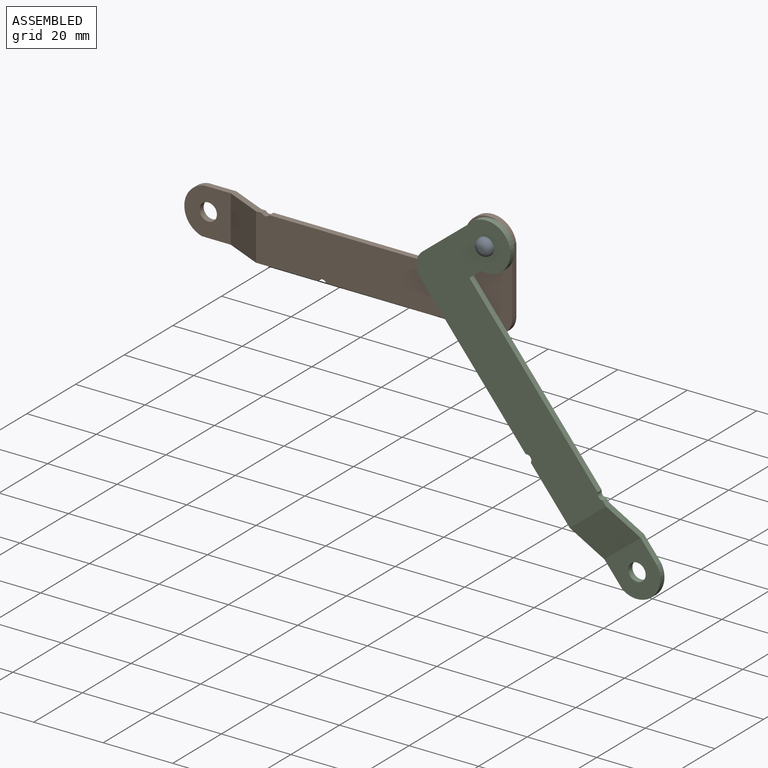
[diagram: assembled view]
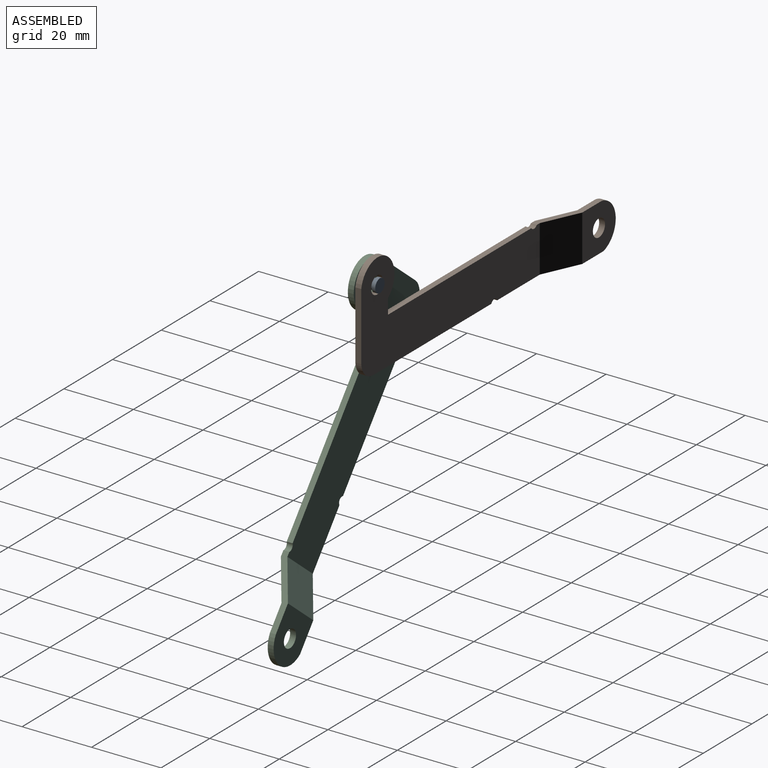
[diagram: assembled view, second angle]
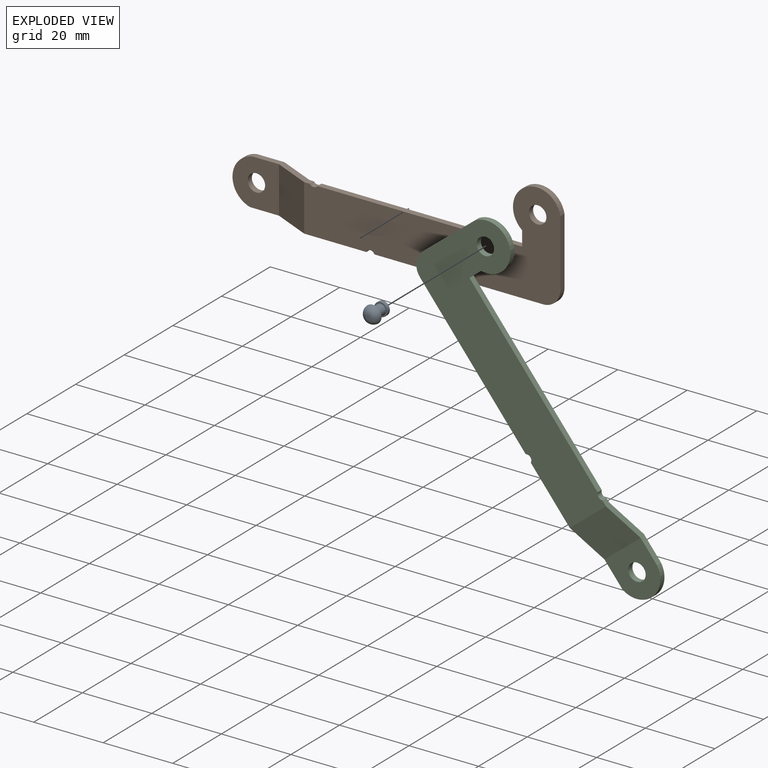
[diagram: exploded view]
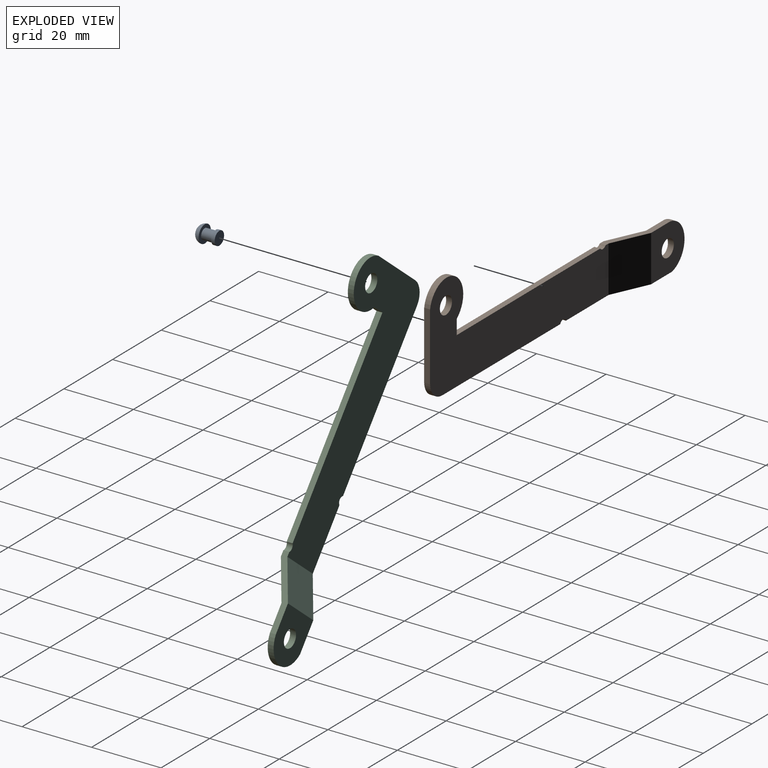
[diagram: exploded view, second angle]
ASSEMBLY  parts=3 mates=2
PART A: 7 faces, bbox 5x6.2x5 mm
  f0: cylinder r=1.5mm len=3.2mm, axis (0,-1,0), area 30.2mm2, adj f2,f5
  f1: plane 0.9x0.9mm, normal (0,-1,0), area 0.6mm2, adj f3
  f2: plane 5x5mm, normal (0,1,0), area 12.6mm2, adj f0,f3
  f3: torus R=0.45mm, axis (0,1,0), area 34.7mm2, adj f1,f2
  f4: cylinder r=1.94mm len=3.88mm, axis (0,1,0), area 12.2mm2, adj f5,f6
  f5: plane 3.88x3.88mm, normal (0,-1,0), area 4.7mm2, adj f0,f4
  f6: plane 3.88x3.88mm, normal (0,1,0), area 11.8mm2, adj f4
PART B: 23 faces, bbox 97.7x6.5x30 mm
  f0: cylinder r=6.87mm len=13.64mm, axis (0,1,0), area 45.2mm2, adj f1,f11,f19,f22
  f1: plane 4.27x1.7mm, normal (-1,0,0), area 7.3mm2, adj f0,f2,f11,f22
  f2: plane 58.91x1.7mm, normal (0,0,1), area 100mm2, adj f1,f3,f11,f22
  f3: cylinder r=1.34mm len=2.19mm, axis (0,1,0), area 4.4mm2, adj f2,f4,f11,f22
  f4: plane 19.78x6.5mm, normal (0,0,1), area 35.4mm2, adj f3,f11,f13,f14,f16,f18,f21,f22
  f5: cylinder r=6.83mm len=6.25mm, axis (0,1,0), area 14.6mm2, adj f6,f14,f16,f17
  f6: plane 36.79x6.5mm, normal (0,0,-1), area 64.2mm2, adj f5,f7,f11,f14,f16,f18,f21,f22
  f7: cylinder r=1.27mm len=2.34mm, axis (0,1,0), area 5.1mm2, adj f6,f8,f11,f22
  f8: plane 48.51x1.7mm, normal (0,0,-1), area 82.3mm2, adj f7,f9,f11,f22
  f9: cylinder r=5mm len=4.99mm, axis (0,1,0), area 12.9mm2, adj f8,f11,f20,f22
  f10: plane 19.26x1.71mm, normal (1,0,0), area 32.6mm2, adj f11,f19,f20,f22
  f11: plane 73.73x30.03mm, normal (0,-1,0), area 1150.7mm2, adj f0,f1,f2,f3,f4,f6,f7,f8
  f12: cylinder r=2.5mm len=5mm, axis (0,1,0), area 26.7mm2, adj f11,f22
  f13: cylinder r=6.83mm len=6.41mm, axis (0,1,0), area 15.9mm2, adj f4,f14,f16,f17
  f14: plane 13.74x13.37mm, normal (0,1,0), area 145.8mm2, adj f4,f5,f6,f13,f15,f17,f21
  f15: cylinder r=2.5mm len=5mm, axis (0,1,0), area 26.7mm2, adj f14,f16
  f16: plane 13.37x13.37mm, normal (0,-1,0), area 140.9mm2, adj f4,f5,f6,f13,f15,f17,f18
  f17: plane 1.7x0.7mm, normal (-1,0,0), area 1.2mm2, adj f5,f13,f14,f16
  f18: plane 13.39x10.62mm, normal (-0.41,-0.91,0), area 155.8mm2, adj f4,f6,f11,f16
  f19: plane 1.71x0.05mm, normal (1,0,0), area 0.1mm2, adj f0,f10,f22
  f20: plane 1.73x0.28mm, normal (1,0,0), area 0.4mm2, adj f9,f10,f11,f22
  f21: plane 13.39x10.61mm, normal (0.41,0.91,0), area 155.8mm2, adj f4,f6,f14,f22
  f22: plane 73.35x29.95mm, normal (0,1,0), area 1145.3mm2, adj f0,f1,f2,f3,f4,f6,f7,f8
PART C: 23 faces, bbox 97.7x6.5x30 mm
  f0: cylinder r=5mm len=4.99mm, axis (0,-1,0), area 12.9mm2, adj f1,f15,f16,f17
  f1: plane 48.51x1.7mm, normal (0,0,-1), area 82.5mm2, adj f0,f2,f15,f17
  f2: cylinder r=1.27mm len=2.34mm, axis (0,-1,0), area 5.1mm2, adj f1,f3,f15,f17
  f3: plane 36.79x6.5mm, normal (0,0,-1), area 64.3mm2, adj f2,f4,f11,f14,f15,f17,f18,f19
  f4: cylinder r=6.83mm len=6.25mm, axis (0,-1,0), area 14.6mm2, adj f3,f11,f13,f19
  f5: cylinder r=6.83mm len=6.41mm, axis (0,-1,0), area 15.9mm2, adj f6,f11,f13,f19
  f6: plane 19.78x6.5mm, normal (0,0,1), area 35.4mm2, adj f5,f7,f11,f14,f15,f17,f18,f19
  f7: cylinder r=1.34mm len=2.19mm, axis (0,-1,0), area 4.4mm2, adj f6,f8,f15,f17
  f8: plane 58.91x1.7mm, normal (0,0,1), area 100.1mm2, adj f7,f9,f15,f17
  f9: plane 4.27x1.7mm, normal (-1,0,0), area 7.3mm2, adj f8,f10,f15,f17
  f10: cylinder r=6.87mm len=13.64mm, axis (0,-1,0), area 45.3mm2, adj f9,f12,f15,f17
  f11: plane 13.74x13.37mm, normal (0,-1,0), area 145.8mm2, adj f3,f4,f5,f6,f13,f14,f21
  f12: plane 1.71x0.05mm, normal (1,0,0), area 0.1mm2, adj f10,f15,f17,f20
  f13: plane 1.7x0.7mm, normal (-1,0,0), area 1.2mm2, adj f4,f5,f11,f19
  f14: plane 13.39x10.61mm, normal (0.41,-0.91,0), area 155.8mm2, adj f3,f6,f11,f15
  f15: plane 73.35x29.95mm, normal (0,-1,0), area 1145.3mm2, adj f0,f1,f2,f3,f6,f7,f8,f9
  f16: plane 1.73x0.28mm, normal (1,0,0), area 0.4mm2, adj f0,f15,f17,f20
  f17: plane 73.72x29.95mm, normal (0,1,0), area 1150.3mm2, adj f0,f1,f2,f3,f6,f7,f8,f9
  f18: plane 13.38x10.61mm, normal (-0.41,0.91,0), area 155.8mm2, adj f3,f6,f17,f19
  f19: plane 13.37x13.37mm, normal (0,1,0), area 140.9mm2, adj f3,f4,f5,f6,f13,f18,f21
  f20: plane 19.25x1.71mm, normal (1,0,0), area 32.7mm2, adj f12,f15,f16,f17
  f21: cylinder r=2.5mm len=5mm, axis (0,-1,0), area 26.7mm2, adj f11,f19
  f22: cylinder r=2.5mm len=5mm, axis (0,-1,0), area 26.7mm2, adj f15,f17
PLACE A rot(axis=(0,1,0),51.2deg) t=(-0.12,-11.32,50.32)mm
PLACE B t=(-0.82,-3.12,-12.21)mm fixed
PLACE C rot(axis=(-0.43,0,-0.9),180deg) t=(-48.43,-4.82,10.62)mm
MATE fastened A.f3 <-> C.f22  axis (0,1,0) through (-0.12,-11.32,50.32)mm
MATE revolute C.f22 <-> B.f12  axis (0,1,0) through (-0.12,-9.62,50.32)mm
